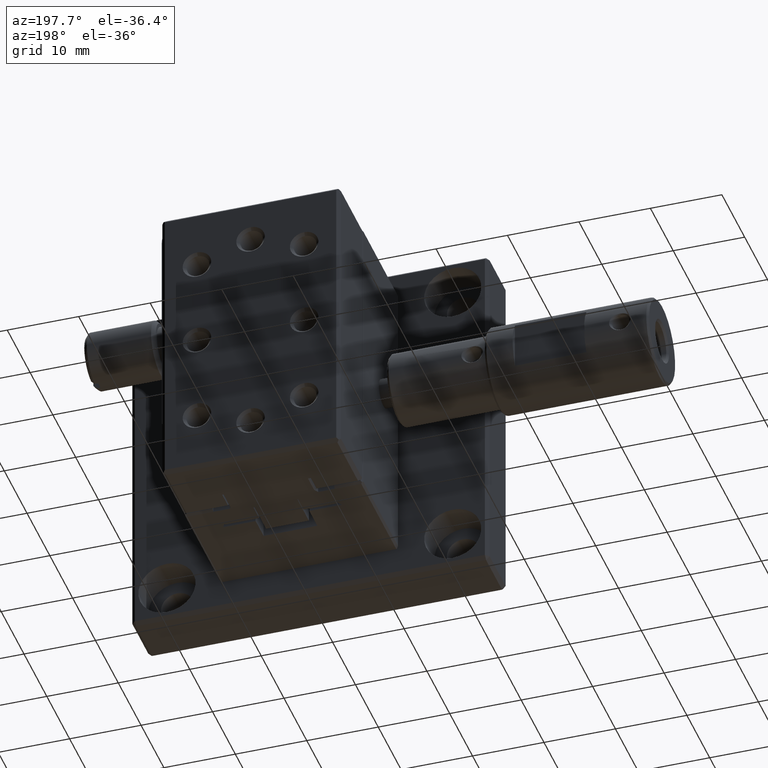
[diagram: clean part render]
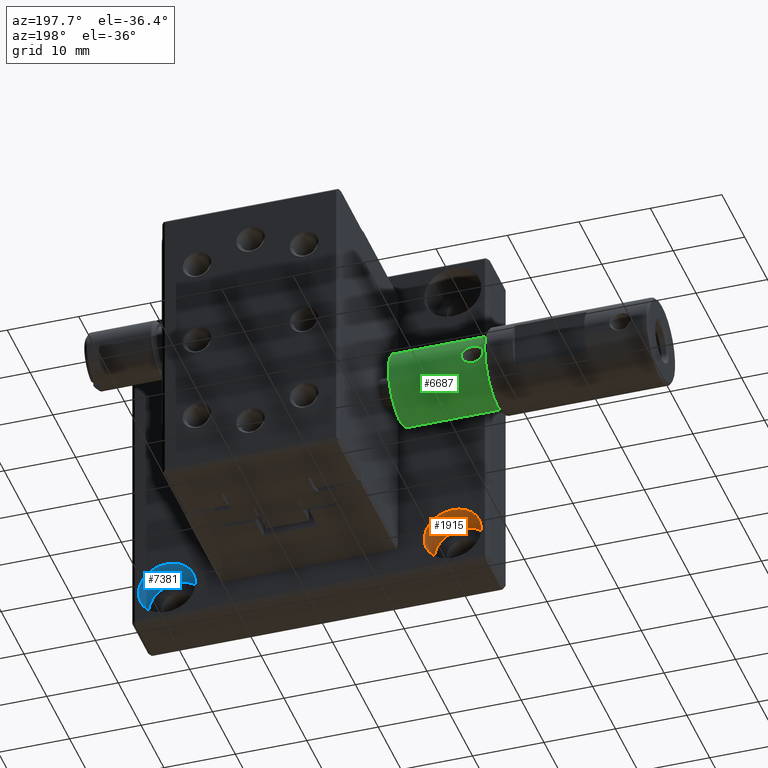
[diagram: same view with three faces highlighted in distinct colors, each labeled with its STEP entity id]
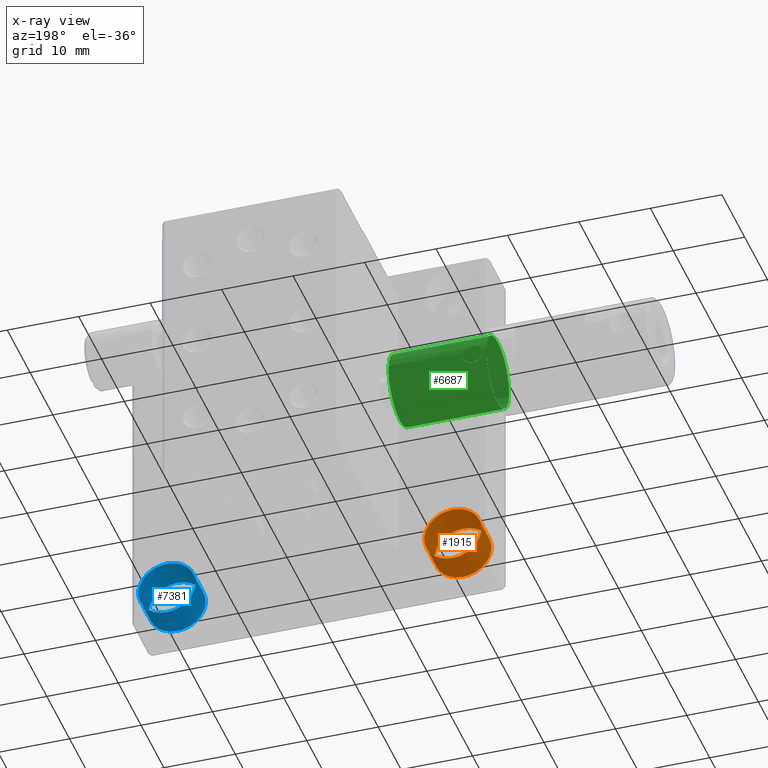
[diagram: x-ray of the same camera — body ghosted, the three highlighted faces saturated]
A machine part, auxiliary view with three faces highlighted in distinct colors.
The next image is the same camera in x-ray (body ghosted, the three faces saturated) — at least one of them is partly hidden behind the body in this view.
Their STEP definitions:

[orange] entity #1915 — the highlighted cylindrical surface (bore or boss wall) has radius 4 mm, axis along (0, 1, 0).
#447 = CARTESIAN_POINT ( 'NONE',  ( -20.00000000000000000, -4.500000000000000888, -20.00000000000000000 ) ) ;
#507 = CIRCLE ( 'NONE', #7085, 4.000000000000000000 ) ;
#1025 = DIRECTION ( 'NONE',  ( 0.000000000000000000, 0.000000000000000000, 1.000000000000000000 ) ) ;
#1104 = CARTESIAN_POINT ( 'NONE',  ( -20.00000000000000000, 0.000000000000000000, -20.00000000000000000 ) ) ;
#1219 = AXIS2_PLACEMENT_3D ( 'NONE', #447, #3053, #1025 ) ;
#1221 = ORIENTED_EDGE ( 'NONE', *, *, #6132, .F. ) ;
#1360 = CARTESIAN_POINT ( 'NONE',  ( -20.00000000000000000, -4.500000000000000888, -16.00000000000000000 ) ) ;
#1703 = FACE_OUTER_BOUND ( 'NONE', #3615, .T. ) ;
#1794 = CYLINDRICAL_SURFACE ( 'NONE', #1219, 4.000000000000000000 ) ;
#1915 = ADVANCED_FACE ( 'NONE', ( #4182, #1703 ), #1794, .F. ) ;
#2502 = DIRECTION ( 'NONE',  ( 0.000000000000000000, 1.000000000000000000, 0.000000000000000000 ) ) ;
#2716 = VERTEX_POINT ( 'NONE', #1360 ) ;
#3053 = DIRECTION ( 'NONE',  ( 0.000000000000000000, 1.000000000000000000, 0.000000000000000000 ) ) ;
#3124 = AXIS2_PLACEMENT_3D ( 'NONE', #7521, #2502, #8153 ) ;
#3214 = EDGE_CURVE ( 'NONE', #2716, #2716, #4872, .T. ) ;
#3384 = ORIENTED_EDGE ( 'NONE', *, *, #3214, .F. ) ;
#3615 = EDGE_LOOP ( 'NONE', ( #3384 ) ) ;
#3717 = CARTESIAN_POINT ( 'NONE',  ( -20.00000000000000000, 0.000000000000000000, -16.00000000000000000 ) ) ;
#3946 = VERTEX_POINT ( 'NONE', #3717 ) ;
#4182 = FACE_OUTER_BOUND ( 'NONE', #7426, .T. ) ;
#4872 = CIRCLE ( 'NONE', #3124, 4.000000000000000000 ) ;
#4979 = DIRECTION ( 'NONE',  ( 0.000000000000000000, 0.000000000000000000, 1.000000000000000000 ) ) ;
#6132 = EDGE_CURVE ( 'NONE', #3946, #3946, #507, .T. ) ;
#7085 = AXIS2_PLACEMENT_3D ( 'NONE', #1104, #8190, #4979 ) ;
#7426 = EDGE_LOOP ( 'NONE', ( #1221 ) ) ;
#7521 = CARTESIAN_POINT ( 'NONE',  ( -20.00000000000000000, -4.500000000000000888, -20.00000000000000000 ) ) ;
#8153 = DIRECTION ( 'NONE',  ( 0.000000000000000000, 0.000000000000000000, 1.000000000000000000 ) ) ;
#8190 = DIRECTION ( 'NONE',  ( -0.000000000000000000, -1.000000000000000000, -0.000000000000000000 ) ) ;

[blue] entity #7381 — the highlighted cylindrical surface (bore or boss wall) has radius 4 mm, axis along (0, 1, 0).
#247 = DIRECTION ( 'NONE',  ( 0.000000000000000000, 1.000000000000000000, 0.000000000000000000 ) ) ;
#376 = ORIENTED_EDGE ( 'NONE', *, *, #4138, .F. ) ;
#691 = AXIS2_PLACEMENT_3D ( 'NONE', #4314, #6218, #6378 ) ;
#877 = CYLINDRICAL_SURFACE ( 'NONE', #5365, 4.000000000000000000 ) ;
#1500 = DIRECTION ( 'NONE',  ( 0.000000000000000000, 0.000000000000000000, 1.000000000000000000 ) ) ;
#2191 = DIRECTION ( 'NONE',  ( 0.000000000000000000, 0.000000000000000000, 1.000000000000000000 ) ) ;
#2230 = CARTESIAN_POINT ( 'NONE',  ( 20.00000000000000000, -4.500000000000000888, -20.00000000000000000 ) ) ;
#2261 = CARTESIAN_POINT ( 'NONE',  ( 20.00000000000000000, -4.500000000000000888, -20.00000000000000000 ) ) ;
#2957 = CARTESIAN_POINT ( 'NONE',  ( 20.00000000000000000, -4.500000000000000888, -16.00000000000000000 ) ) ;
#3632 = CARTESIAN_POINT ( 'NONE',  ( 20.00000000000000000, 0.000000000000000000, -16.00000000000000000 ) ) ;
#3662 = EDGE_LOOP ( 'NONE', ( #8324 ) ) ;
#4130 = VERTEX_POINT ( 'NONE', #2957 ) ;
#4138 = EDGE_CURVE ( 'NONE', #6664, #6664, #6739, .T. ) ;
#4314 = CARTESIAN_POINT ( 'NONE',  ( 20.00000000000000000, 0.000000000000000000, -20.00000000000000000 ) ) ;
#4793 = FACE_OUTER_BOUND ( 'NONE', #5729, .T. ) ;
#4794 = EDGE_CURVE ( 'NONE', #4130, #4130, #7070, .T. ) ;
#5365 = AXIS2_PLACEMENT_3D ( 'NONE', #2230, #247, #2191 ) ;
#5729 = EDGE_LOOP ( 'NONE', ( #376 ) ) ;
#6218 = DIRECTION ( 'NONE',  ( -0.000000000000000000, -1.000000000000000000, -0.000000000000000000 ) ) ;
#6378 = DIRECTION ( 'NONE',  ( 0.000000000000000000, 0.000000000000000000, 1.000000000000000000 ) ) ;
#6524 = AXIS2_PLACEMENT_3D ( 'NONE', #2261, #7956, #1500 ) ;
#6664 = VERTEX_POINT ( 'NONE', #3632 ) ;
#6739 = CIRCLE ( 'NONE', #691, 4.000000000000000000 ) ;
#7070 = CIRCLE ( 'NONE', #6524, 4.000000000000000000 ) ;
#7381 = ADVANCED_FACE ( 'NONE', ( #4793, #8134 ), #877, .F. ) ;
#7956 = DIRECTION ( 'NONE',  ( 0.000000000000000000, 1.000000000000000000, 0.000000000000000000 ) ) ;
#8134 = FACE_OUTER_BOUND ( 'NONE', #3662, .T. ) ;
#8324 = ORIENTED_EDGE ( 'NONE', *, *, #4794, .F. ) ;

[green] entity #6687 — the highlighted cylindrical surface (bore or boss wall) has radius 5 mm, axis along (1, 0, 0).
#70 = CARTESIAN_POINT ( 'NONE',  ( -25.00289277340139904, 11.89933258986371634, 0.1233890381167642297 ) ) ;
#508 = EDGE_CURVE ( 'NONE', #5152, #5152, #5688, .T. ) ;
#580 = EDGE_CURVE ( 'NONE', #3689, #3689, #5099, .T. ) ;
#655 = CARTESIAN_POINT ( 'NONE',  ( -25.75449973118855596, 11.76458743726825595, -1.157616414904728996 ) ) ;
#669 = DIRECTION ( 'NONE',  ( 1.000000000000000000, 0.000000000000000000, 0.000000000000000000 ) ) ;
#698 = CARTESIAN_POINT ( 'NONE',  ( -27.95420584700962863, 11.88955026226427769, 0.3355601694631548115 ) ) ;
#736 = CARTESIAN_POINT ( 'NONE',  ( -27.80388671878827722, 11.85697026588363912, 0.6759968364240448446 ) ) ;
#1004 = ORIENTED_EDGE ( 'NONE', *, *, #580, .T. ) ;
#1298 = FACE_OUTER_BOUND ( 'NONE', #7391, .T. ) ;
#1363 = DIRECTION ( 'NONE',  ( 1.000000000000000000, 0.000000000000000000, 0.000000000000000000 ) ) ;
#1543 = EDGE_LOOP ( 'NONE', ( #5743 ) ) ;
#1843 = CARTESIAN_POINT ( 'NONE',  ( -26.52487777880185149, 11.72210179713824196, 1.321867715785616904 ) ) ;
#1923 = CARTESIAN_POINT ( 'NONE',  ( -25.06522304110201560, 11.88520174505582361, 0.3945440160156633569 ) ) ;
#1957 = CARTESIAN_POINT ( 'NONE',  ( -27.92381981236694344, 11.88270876026831502, 0.4239633183111072290 ) ) ;
#1995 = CARTESIAN_POINT ( 'NONE',  ( -27.99434472292001885, 11.89869527618600209, -0.2173563537471563945 ) ) ;
#1998 = AXIS2_PLACEMENT_3D ( 'NONE', #5956, #7268, #7905 ) ;
#2082 = CARTESIAN_POINT ( 'NONE',  ( -26.15595027016478369, 11.72917069770269016, 1.297193824776481597 ) ) ;
#2338 = EDGE_LOOP ( 'NONE', ( #1004 ) ) ;
#2556 = CARTESIAN_POINT ( 'NONE',  ( -27.19262140857005150, 11.75842367981419123, -1.182877299980988450 ) ) ;
#2599 = CARTESIAN_POINT ( 'NONE',  ( -25.59198558004975865, 11.78695523466031325, -1.064327750256887084 ) ) ;
#2637 = CARTESIAN_POINT ( 'NONE',  ( -25.09936192672684996, 11.87761846622961670, 0.4796536354525831047 ) ) ;
#2777 = EDGE_CURVE ( 'NONE', #5988, #5988, #3784, .T. ) ;
#2976 = CARTESIAN_POINT ( 'NONE',  ( -27.40815005124997938, 11.78698790391239015, 1.064102110281154756 ) ) ;
#3057 = CARTESIAN_POINT ( 'NONE',  ( -14.80000000000000071, 6.900000000000014566, -5.000000000000000000 ) ) ;
#3176 = CARTESIAN_POINT ( 'NONE',  ( -26.52487777880349995, 11.72210179712602418, 1.321867715788830999 ) ) ;
#3238 = DIRECTION ( 'NONE',  ( 0.000000000000000000, 0.000000000000000000, -1.000000000000000000 ) ) ;
#3267 = CARTESIAN_POINT ( 'NONE',  ( -25.31204876421346128, 11.83337197326181034, -0.8227794351924869742 ) ) ;
#3307 = CARTESIAN_POINT ( 'NONE',  ( -26.28660756266737053, 11.72298338377749261, -1.318651574744893917 ) ) ;
#3363 = CARTESIAN_POINT ( 'NONE',  ( -14.50000000000000000, 6.900000000000014566, 0.000000000000000000 ) ) ;
#3689 = VERTEX_POINT ( 'NONE', #3057 ) ;
#3784 = CIRCLE ( 'NONE', #6205, 5.000000000000000000 ) ;
#3812 = CARTESIAN_POINT ( 'NONE',  ( -27.24479596299519102, 11.76449451446435113, 1.158005897983394705 ) ) ;
#3863 = FACE_BOUND ( 'NONE', #1543, .T. ) ;
#3890 = CARTESIAN_POINT ( 'NONE',  ( -27.64566620734630931, 11.82553919383027541, -0.8674748743588072131 ) ) ;
#4478 = CARTESIAN_POINT ( 'NONE',  ( -25.23065450432978096, 11.84994200308879719, 0.7246288618793089720 ) ) ;
#4517 = CARTESIAN_POINT ( 'NONE',  ( -25.03656225994302886, 11.89121369181743049, -0.3405171491608180445 ) ) ;
#4561 = CARTESIAN_POINT ( 'NONE',  ( -27.76927367111282052, 11.84993785144778755, -0.7241805800140550531 ) ) ;
#5099 = CIRCLE ( 'NONE', #1998, 5.000000000000000000 ) ;
#5121 = CARTESIAN_POINT ( 'NONE',  ( -26.10074931990916269, 11.73260768372588103, -1.284597086279849032 ) ) ;
#5152 = VERTEX_POINT ( 'NONE', #3176 ) ;
#5197 = CARTESIAN_POINT ( 'NONE',  ( -26.33756563065828260, 11.72134337334629706, 1.324634404680765876 ) ) ;
#5276 = CARTESIAN_POINT ( 'NONE',  ( -28.50000000000000000, 6.900000000000014566, -5.000000000000000000 ) ) ;
#5283 = CARTESIAN_POINT ( 'NONE',  ( -24.99545732722713964, 11.90104803860114835, -0.1540237345562883997 ) ) ;
#5688 = B_SPLINE_CURVE_WITH_KNOTS ( 'NONE', 3,
 ( #1843, #5706, #8293, #3812, #2976, #8127, #736, #1957, #698, #8331, #7780, #1995, #5910, #4561, #3890, #6464, #2556, #5826, #7708, #3307, #5121, #655, #2599, #3267, #6506, #4517, #5283, #70, #7864, #1923, #2637, #4478, #6422, #7101, #5786, #2082, #5197, #7059 ),
 .UNSPECIFIED., .T., .F.,
 ( 4, 2, 2, 2, 2, 2, 2, 2, 2, 2, 2, 2, 2, 2, 2, 2, 2, 2, 4 ),
 ( 0.000000000000000000, 0.0005578159567519882069, 0.001115631913503976414, 0.001673447870255964729, 0.001952355848631958778, 0.002231263827007952828, 0.002789079783759941360, 0.003346895740511930326, 0.003904711697263918424, 0.004462527654015906522, 0.005020343610767894621, 0.005578159567519882719, 0.006135975524271871685, 0.006693791481023859784, 0.006972699459399853833, 0.007251607437775847882, 0.007809423394527835981, 0.008367239351279824947, 0.008925055308031811310 ),
 .UNSPECIFIED. ) ;
#5706 = CARTESIAN_POINT ( 'NONE',  ( -26.71218992694542038, 11.72286022093018509, 1.319101026890468153 ) ) ;
#5743 = ORIENTED_EDGE ( 'NONE', *, *, #508, .T. ) ;
#5782 = CARTESIAN_POINT ( 'NONE',  ( -28.50000000000000000, 6.900000000000014566, 0.000000000000000000 ) ) ;
#5786 = CARTESIAN_POINT ( 'NONE',  ( -25.80252035462357441, 11.75891395911001602, 1.180913453456380990 ) ) ;
#5826 = CARTESIAN_POINT ( 'NONE',  ( -26.84301092531272914, 11.72916609049688397, -1.297163917854877502 ) ) ;
#5910 = CARTESIAN_POINT ( 'NONE',  ( -27.94269274724630137, 11.88647271091814339, -0.4017613084079750818 ) ) ;
#5956 = CARTESIAN_POINT ( 'NONE',  ( -14.80000000000000071, 6.900000000000014566, 0.000000000000000000 ) ) ;
#5988 = VERTEX_POINT ( 'NONE', #5276 ) ;
#6011 = AXIS2_PLACEMENT_3D ( 'NONE', #3363, #669, #3238 ) ;
#6205 = AXIS2_PLACEMENT_3D ( 'NONE', #5782, #1363, #7816 ) ;
#6422 = CARTESIAN_POINT ( 'NONE',  ( -25.35082803939767970, 11.82613761401776564, 0.8643014513706910318 ) ) ;
#6433 = CYLINDRICAL_SURFACE ( 'NONE', #6011, 5.000000000000000000 ) ;
#6464 = CARTESIAN_POINT ( 'NONE',  ( -27.35938983409335279, 11.78002381551557320, -1.094904821252888238 ) ) ;
#6506 = CARTESIAN_POINT ( 'NONE',  ( -25.19528117955613311, 11.85714620600970015, -0.6744386840195377708 ) ) ;
#6605 = ORIENTED_EDGE ( 'NONE', *, *, #2777, .T. ) ;
#6687 = ADVANCED_FACE ( 'NONE', ( #1298, #3863, #7877 ), #6433, .T. ) ;
#7059 = CARTESIAN_POINT ( 'NONE',  ( -26.52487777880185149, 11.72210179713824196, 1.321867715785616904 ) ) ;
#7101 = CARTESIAN_POINT ( 'NONE',  ( -25.64037451459046224, 11.78002077201455045, 1.095100934064385578 ) ) ;
#7268 = DIRECTION ( 'NONE',  ( -1.000000000000000000, -0.000000000000000000, -0.000000000000000000 ) ) ;
#7391 = EDGE_LOOP ( 'NONE', ( #6605 ) ) ;
#7708 = CARTESIAN_POINT ( 'NONE',  ( -26.65584501165744769, 11.72125422989474863, -1.324959752782312261 ) ) ;
#7780 = CARTESIAN_POINT ( 'NONE',  ( -28.00214382237187749, 11.90049457961297641, 0.06002933808578678199 ) ) ;
#7816 = DIRECTION ( 'NONE',  ( 0.000000000000000000, 0.000000000000000000, -1.000000000000000000 ) ) ;
#7864 = CARTESIAN_POINT ( 'NONE',  ( -25.01691657683106484, 11.89607549055156177, 0.2170970110143811138 ) ) ;
#7877 = FACE_OUTER_BOUND ( 'NONE', #2338, .T. ) ;
#7905 = DIRECTION ( 'NONE',  ( 0.000000000000000000, 0.000000000000000000, -1.000000000000000000 ) ) ;
#8127 = CARTESIAN_POINT ( 'NONE',  ( -27.68684013649584230, 11.83317759578383210, 0.8238463949955885379 ) ) ;
#8293 = CARTESIAN_POINT ( 'NONE',  ( -26.89792266099725637, 11.73251306395417615, 1.284952149976939850 ) ) ;
#8331 = CARTESIAN_POINT ( 'NONE',  ( -27.99331048832433311, 11.89843295856141481, 0.1545328630378376700 ) ) ;